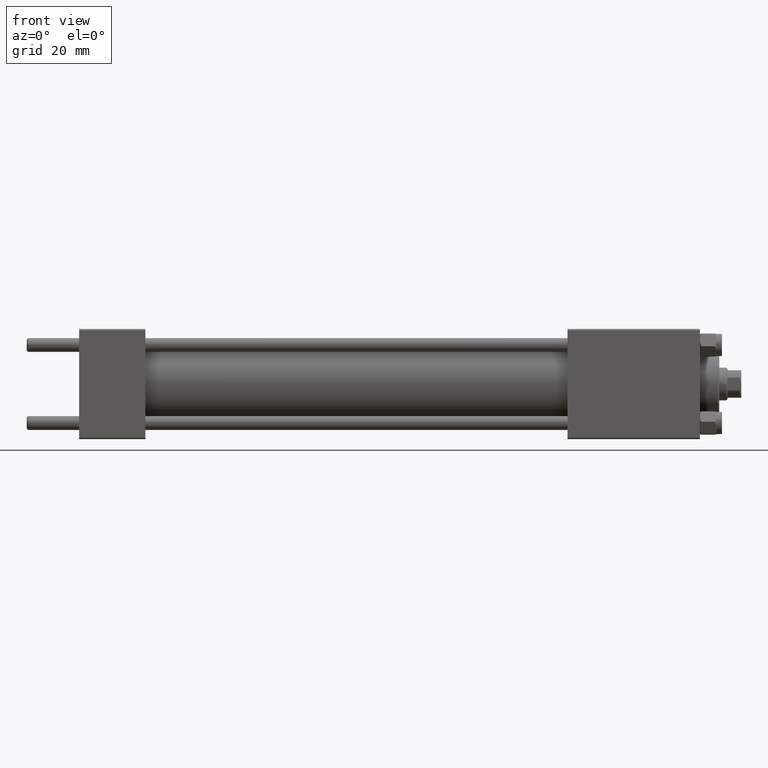
[diagram: clean part render]
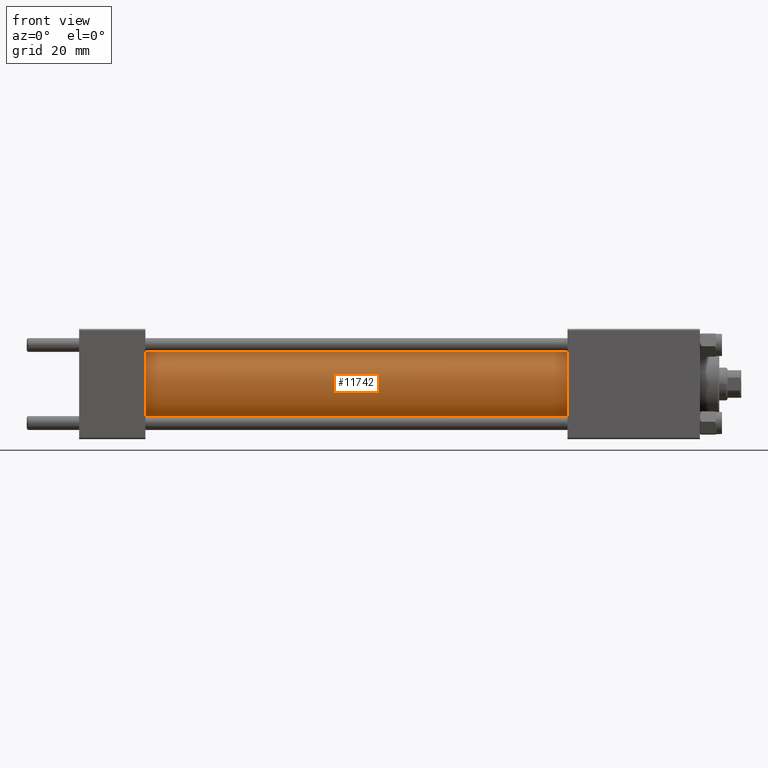
[diagram: same view with one face highlighted and labeled with its STEP entity id]
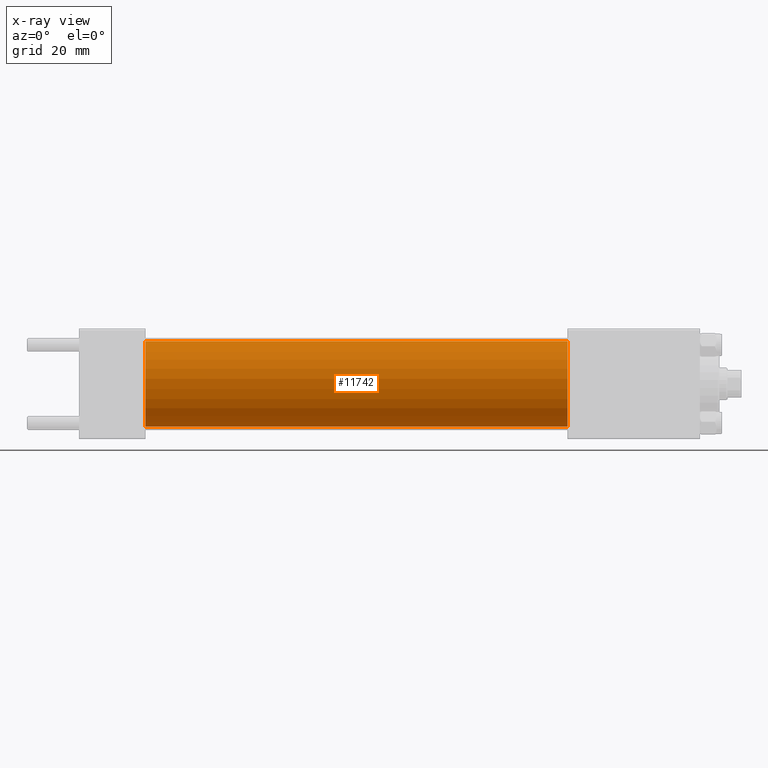
[diagram: x-ray of the same camera — body ghosted, the highlighted face saturated]
A machine part, front view. The second image highlights one B-rep face of the part: STEP entity #11742.
The next image is the same camera in x-ray: the body ghosted, the highlighted face saturated — about 0% of this face is hidden behind the body in this view.
In plain terms, the highlighted cylindrical surface (partial cylindrical patch) has radius 15.5 mm, axis along (-1, -0, -0).
Its self-contained STEP definition (entity closure, byte-faithful):
#56 = EDGE_CURVE ( 'NONE', #32428, #42374, #2180, .T. ) ;
#581 = VECTOR ( 'NONE', #7067, 1000.000000000000000 ) ;
#847 = ORIENTED_EDGE ( 'NONE', *, *, #56, .T. ) ;
#1029 = DIRECTION ( 'NONE',  ( -1.000000000000000000, -0.000000000000000000, -0.000000000000000000 ) ) ;
#1275 = FACE_OUTER_BOUND ( 'NONE', #7315, .T. ) ;
#1672 = VECTOR ( 'NONE', #18883, 1000.000000000000000 ) ;
#2180 = CIRCLE ( 'NONE', #15094, 15.50000000000000000 ) ;
#2727 = ORIENTED_EDGE ( 'NONE', *, *, #43106, .F. ) ;
#2805 = AXIS2_PLACEMENT_3D ( 'NONE', #10319, #15597, #27436 ) ;
#3291 = DIRECTION ( 'NONE',  ( 1.000000000000000000, 0.000000000000000000, 0.000000000000000000 ) ) ;
#4405 = CARTESIAN_POINT ( 'NONE',  ( 177.0000000000000000, 1.898202538678397557E-15, -15.50000000000000000 ) ) ;
#5369 = EDGE_CURVE ( 'NONE', #12026, #42374, #15397, .T. ) ;
#6311 = LINE ( 'NONE', #11082, #1672 ) ;
#7067 = DIRECTION ( 'NONE',  ( -1.000000000000000000, -0.000000000000000000, -0.000000000000000000 ) ) ;
#7315 = EDGE_LOOP ( 'NONE', ( #12460, #2727, #28994, #847 ) ) ;
#7942 = CARTESIAN_POINT ( 'NONE',  ( 23.99999999999999289, 1.898202538678397557E-15, -15.50000000000000000 ) ) ;
#10319 = CARTESIAN_POINT ( 'NONE',  ( 177.0000000000000000, 0.000000000000000000, 0.000000000000000000 ) ) ;
#11082 = CARTESIAN_POINT ( 'NONE',  ( 177.0000000000000000, 0.000000000000000000, 15.50000000000000000 ) ) ;
#11742 = ADVANCED_FACE ( 'NONE', ( #1275 ), #16698, .T. ) ;
#12026 = VERTEX_POINT ( 'NONE', #4405 ) ;
#12426 = CARTESIAN_POINT ( 'NONE',  ( 177.0000000000000000, 0.000000000000000000, 0.000000000000000000 ) ) ;
#12460 = ORIENTED_EDGE ( 'NONE', *, *, #5369, .F. ) ;
#15094 = AXIS2_PLACEMENT_3D ( 'NONE', #49477, #3291, #18939 ) ;
#15397 = LINE ( 'NONE', #49700, #581 ) ;
#15597 = DIRECTION ( 'NONE',  ( 1.000000000000000000, 0.000000000000000000, 0.000000000000000000 ) ) ;
#16698 = CYLINDRICAL_SURFACE ( 'NONE', #21000, 15.50000000000000000 ) ;
#18883 = DIRECTION ( 'NONE',  ( -1.000000000000000000, -0.000000000000000000, -0.000000000000000000 ) ) ;
#18939 = DIRECTION ( 'NONE',  ( 0.000000000000000000, 0.000000000000000000, 1.000000000000000000 ) ) ;
#21000 = AXIS2_PLACEMENT_3D ( 'NONE', #12426, #1029, #24019 ) ;
#24019 = DIRECTION ( 'NONE',  ( 0.000000000000000000, 0.000000000000000000, 1.000000000000000000 ) ) ;
#27436 = DIRECTION ( 'NONE',  ( 0.000000000000000000, 0.000000000000000000, -1.000000000000000000 ) ) ;
#28429 = EDGE_CURVE ( 'NONE', #42153, #32428, #6311, .T. ) ;
#28994 = ORIENTED_EDGE ( 'NONE', *, *, #28429, .T. ) ;
#32428 = VERTEX_POINT ( 'NONE', #33929 ) ;
#33929 = CARTESIAN_POINT ( 'NONE',  ( 23.99999999999999289, 0.000000000000000000, 15.50000000000000000 ) ) ;
#35083 = CIRCLE ( 'NONE', #2805, 15.50000000000000000 ) ;
#42153 = VERTEX_POINT ( 'NONE', #43072 ) ;
#42374 = VERTEX_POINT ( 'NONE', #7942 ) ;
#43072 = CARTESIAN_POINT ( 'NONE',  ( 177.0000000000000000, 0.000000000000000000, 15.50000000000000000 ) ) ;
#43106 = EDGE_CURVE ( 'NONE', #42153, #12026, #35083, .T. ) ;
#49477 = CARTESIAN_POINT ( 'NONE',  ( 23.99999999999999289, 0.000000000000000000, 0.000000000000000000 ) ) ;
#49700 = CARTESIAN_POINT ( 'NONE',  ( 177.0000000000000000, 1.898202538678397557E-15, -15.50000000000000000 ) ) ;